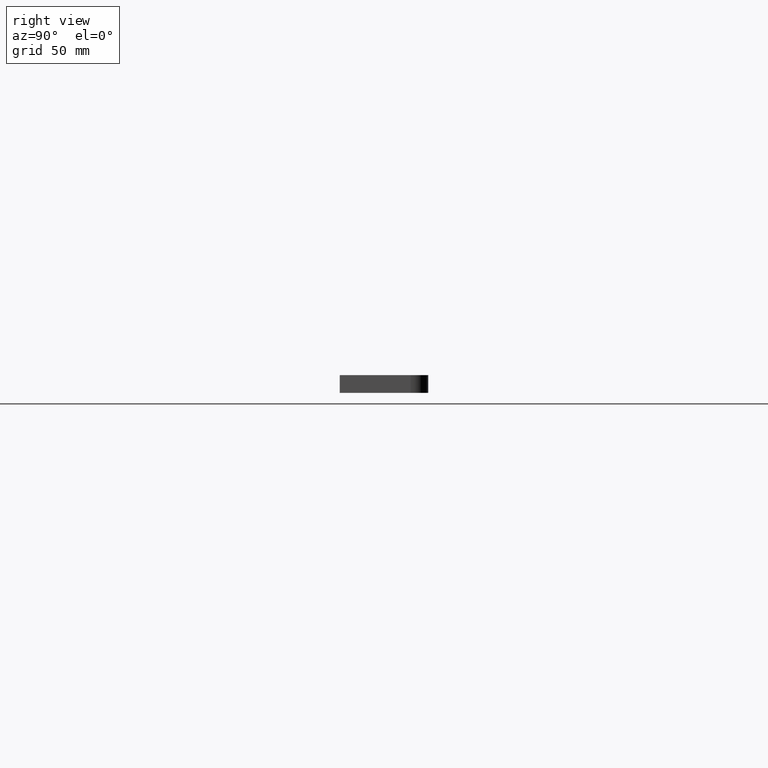
[diagram: clean part render]
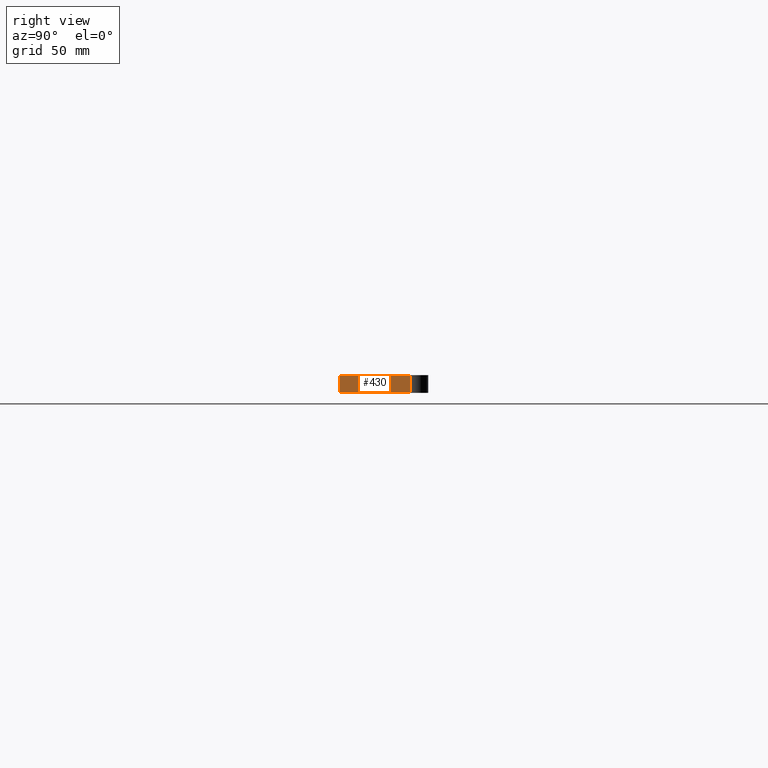
[diagram: same view with one face highlighted and labeled with its STEP entity id]
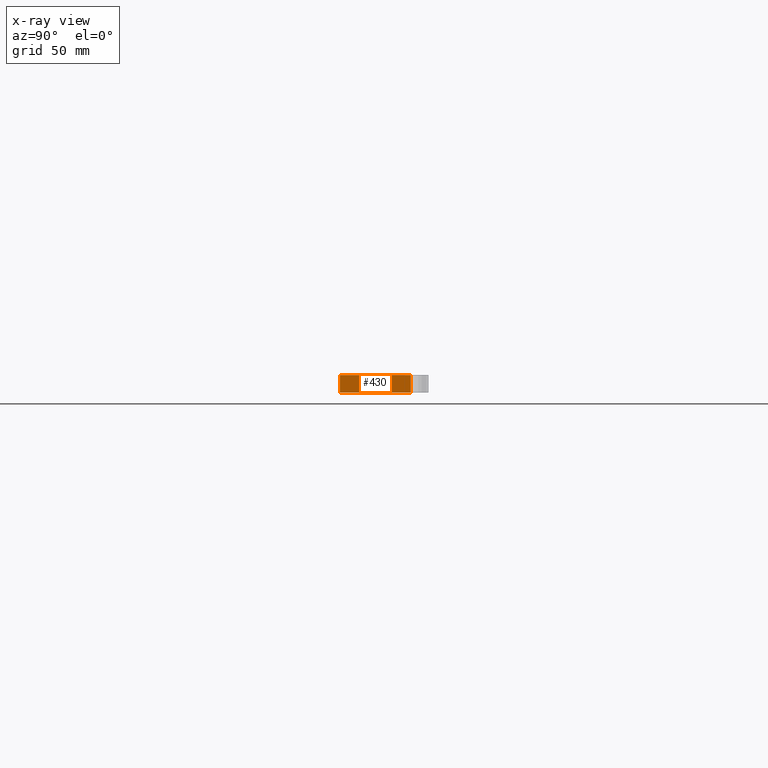
[diagram: x-ray of the same camera — body ghosted, the highlighted face saturated]
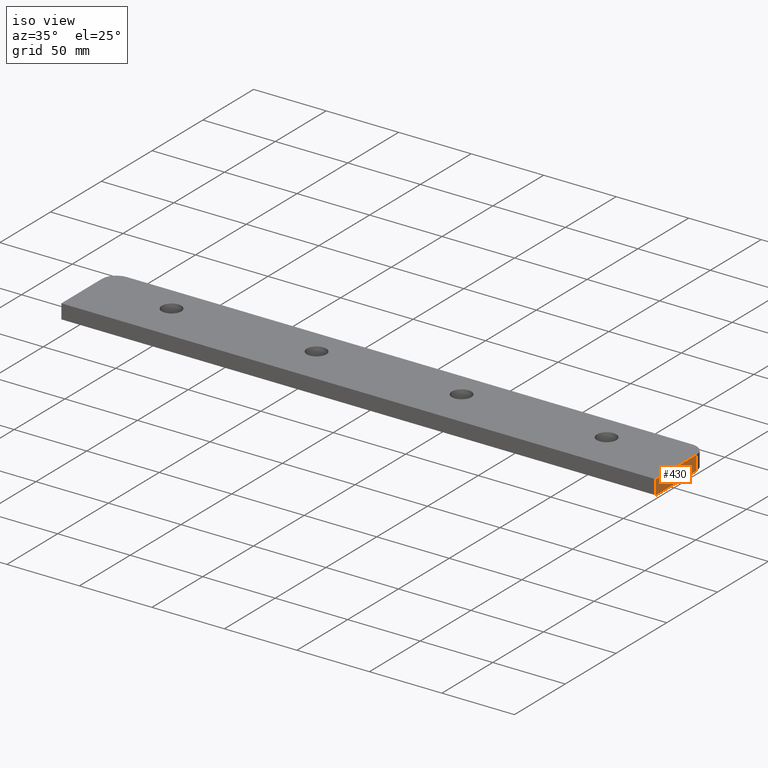
[diagram: same view with one face highlighted and labeled with its STEP entity id]
A machine part, right view. The second image highlights one B-rep face of the part: STEP entity #430.
The next image is the same camera in x-ray: the body ghosted, the highlighted face saturated — about 0% of this face is hidden behind the body in this view.
A second angle (iso view) of the same face is appended — the face is thin or edge-on in the first view.
In plain terms, the highlighted planar face has unit normal (1, 0, -0).
Its self-contained STEP definition (entity closure, byte-faithful):
#16 = VECTOR ( 'NONE', #152, 1000.000000000000000 ) ;
#18 = CARTESIAN_POINT ( 'NONE',  ( 205.0000000000022453, -25.00000000000000000, 2.220650890400619679E-13 ) ) ;
#39 = DIRECTION ( 'NONE',  ( 1.540961891649139084E-35, -4.342972024593210827E-32, 1.000000000000000000 ) ) ;
#55 = DIRECTION ( 'NONE',  ( -1.540961891649139084E-35, 4.342972024593210827E-32, -1.000000000000000000 ) ) ;
#63 = ORIENTED_EDGE ( 'NONE', *, *, #500, .T. ) ;
#70 = ORIENTED_EDGE ( 'NONE', *, *, #472, .T. ) ;
#89 = VECTOR ( 'NONE', #39, 1000.000000000000000 ) ;
#102 = CARTESIAN_POINT ( 'NONE',  ( 205.0000000000017337, -25.00000000000000000, -9.999999999999925393 ) ) ;
#103 = ORIENTED_EDGE ( 'NONE', *, *, #286, .F. ) ;
#141 = ORIENTED_EDGE ( 'NONE', *, *, #480, .F. ) ;
#143 = PLANE ( 'NONE',  #325 ) ;
#145 = FACE_OUTER_BOUND ( 'NONE', #330, .T. ) ;
#152 = DIRECTION ( 'NONE',  ( 1.848892746611746419E-32, 1.000000000000000000, -4.930380657631323784E-32 ) ) ;
#185 = CARTESIAN_POINT ( 'NONE',  ( 205.0000000000017337, -25.00000000000000000, -9.999999999999925393 ) ) ;
#196 = VECTOR ( 'NONE', #241, 1000.000000000000000 ) ;
#226 = CARTESIAN_POINT ( 'NONE',  ( 205.0000000000022453, 15.00000000000001066, 2.220323144560129122E-13 ) ) ;
#241 = DIRECTION ( 'NONE',  ( 1.848892746611746419E-32, 1.000000000000000000, -4.930380657631323784E-32 ) ) ;
#267 = VERTEX_POINT ( 'NONE', #453 ) ;
#269 = LINE ( 'NONE', #185, #89 ) ;
#281 = VERTEX_POINT ( 'NONE', #603 ) ;
#286 = EDGE_CURVE ( 'NONE', #281, #423, #269, .T. ) ;
#287 = DIRECTION ( 'NONE',  ( 1.000000000000000000, 2.773339119917616344E-32, -1.540961891649139084E-35 ) ) ;
#325 = AXIS2_PLACEMENT_3D ( 'NONE', #380, #287, #55 ) ;
#330 = EDGE_LOOP ( 'NONE', ( #70, #63, #141, #103 ) ) ;
#336 = VERTEX_POINT ( 'NONE', #226 ) ;
#337 = DIRECTION ( 'NONE',  ( 1.540961891649139084E-35, -4.342972024593210827E-32, 1.000000000000000000 ) ) ;
#380 = CARTESIAN_POINT ( 'NONE',  ( 205.0000000000017337, -25.00000000000000000, -9.999999999999925393 ) ) ;
#423 = VERTEX_POINT ( 'NONE', #18 ) ;
#427 = LINE ( 'NONE', #471, #440 ) ;
#430 = ADVANCED_FACE ( 'NONE', ( #145 ), #143, .T. ) ;
#440 = VECTOR ( 'NONE', #337, 1000.000000000000000 ) ;
#453 = CARTESIAN_POINT ( 'NONE',  ( 205.0000000000017337, 15.00000000000001066, -9.999999999999925393 ) ) ;
#471 = CARTESIAN_POINT ( 'NONE',  ( 205.0000000000017337, 15.00000000000001066, -9.999999999999925393 ) ) ;
#472 = EDGE_CURVE ( 'NONE', #281, #267, #572, .T. ) ;
#480 = EDGE_CURVE ( 'NONE', #423, #336, #524, .T. ) ;
#500 = EDGE_CURVE ( 'NONE', #267, #336, #427, .T. ) ;
#524 = LINE ( 'NONE', #569, #16 ) ;
#569 = CARTESIAN_POINT ( 'NONE',  ( 205.0000000000022453, -25.00000000000000000, 2.220650890400619679E-13 ) ) ;
#572 = LINE ( 'NONE', #102, #196 ) ;
#603 = CARTESIAN_POINT ( 'NONE',  ( 205.0000000000017337, -25.00000000000000000, -9.999999999999925393 ) ) ;